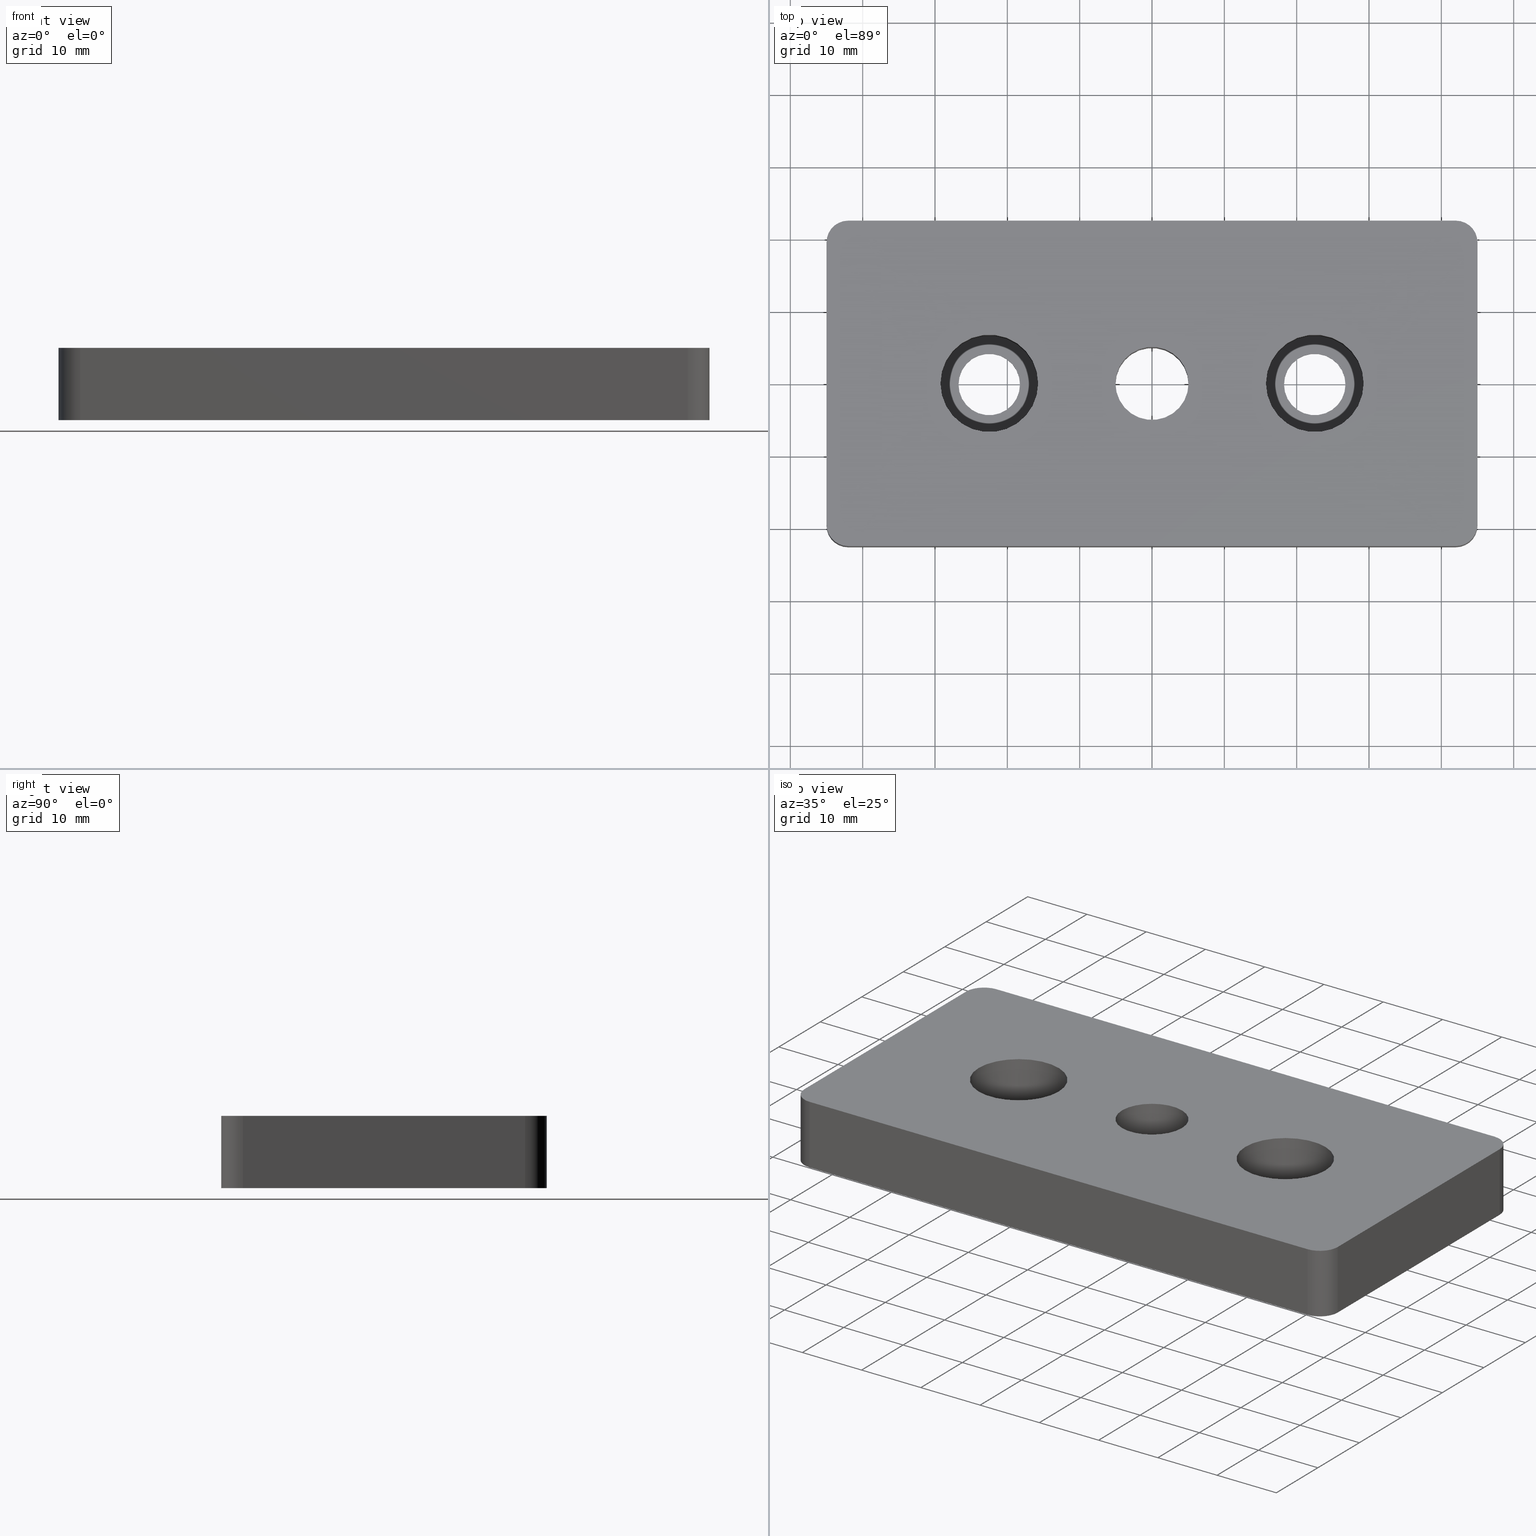
[diagram: canonical four-view strip — front | top / right | iso, engineering-drawing reading convention]
A machine part, canonical four-view strip (front | top / right | iso — engineering-drawing reading convention). The complete STEP part file that produces these views, byte-faithful:
ISO-10303-21;
HEADER;
/* Generated by software containing ST-Developer
 * from STEP Tools, Inc. (www.steptools.com) 
 */

FILE_DESCRIPTION(
/* description */ ('PIASTRA FISS. PIEDI M12 45X90'),
/* implementation_level */ '2;1');

FILE_NAME(
/* name */ 
'Q:\\Catalogo\\2_Accessori Dierre\\Per Download Web e catalogo cartace
o\\CATALOGO PIEDI E SOSTEGNI\\PAGINA 45\\DPSXX0001725.stp',
/* time_stamp */ '2018-11-09T11:29:43+01:00',
/* author */ ('fzagni'),
/* organization */ (''),
/* preprocessor_version */ 'ST-DEVELOPER v16.1',
/* originating_system */ 'Autodesk Inventor 2016',
/* authorisation */ '');

FILE_SCHEMA (('AUTOMOTIVE_DESIGN { 1 0 10303 214 3 1 1 }'));
ENDSEC;

DATA;
#10=MECHANICAL_DESIGN_GEOMETRIC_PRESENTATION_REPRESENTATION('',(#13),#493);
#11=SHAPE_REPRESENTATION_RELATIONSHIP('SRR','None',#502,#12);
#12=ADVANCED_BREP_SHAPE_REPRESENTATION('',(#14),#492);
#13=STYLED_ITEM('',(#511),#14);
#14=MANIFOLD_SOLID_BREP('Solido1',#287);
#15=FACE_BOUND('',#56,.T.);
#16=FACE_BOUND('',#57,.T.);
#17=FACE_BOUND('',#58,.T.);
#18=FACE_BOUND('',#65,.T.);
#19=FACE_BOUND('',#67,.T.);
#20=FACE_BOUND('',#69,.T.);
#21=FACE_BOUND('',#71,.T.);
#22=FACE_BOUND('',#73,.T.);
#23=FACE_BOUND('',#75,.T.);
#24=FACE_BOUND('',#77,.T.);
#25=FACE_BOUND('',#80,.T.);
#26=FACE_BOUND('',#81,.T.);
#27=FACE_BOUND('',#82,.T.);
#28=PLANE('',#292);
#29=PLANE('',#293);
#30=PLANE('',#302);
#31=PLANE('',#305);
#32=PLANE('',#308);
#33=PLANE('',#314);
#34=PLANE('',#322);
#35=PLANE('',#323);
#36=FACE_OUTER_BOUND('',#53,.T.);
#37=FACE_OUTER_BOUND('',#54,.T.);
#38=FACE_OUTER_BOUND('',#55,.T.);
#39=FACE_OUTER_BOUND('',#59,.T.);
#40=FACE_OUTER_BOUND('',#60,.T.);
#41=FACE_OUTER_BOUND('',#61,.T.);
#42=FACE_OUTER_BOUND('',#62,.T.);
#43=FACE_OUTER_BOUND('',#63,.T.);
#44=FACE_OUTER_BOUND('',#64,.T.);
#45=FACE_OUTER_BOUND('',#66,.T.);
#46=FACE_OUTER_BOUND('',#68,.T.);
#47=FACE_OUTER_BOUND('',#70,.T.);
#48=FACE_OUTER_BOUND('',#72,.T.);
#49=FACE_OUTER_BOUND('',#74,.T.);
#50=FACE_OUTER_BOUND('',#76,.T.);
#51=FACE_OUTER_BOUND('',#78,.T.);
#52=FACE_OUTER_BOUND('',#79,.T.);
#53=EDGE_LOOP('',(#193,#194,#195,#196));
#54=EDGE_LOOP('',(#197,#198,#199,#200));
#55=EDGE_LOOP('',(#201,#202,#203,#204,#205,#206,#207,#208));
#56=EDGE_LOOP('',(#209));
#57=EDGE_LOOP('',(#210));
#58=EDGE_LOOP('',(#211));
#59=EDGE_LOOP('',(#212,#213,#214,#215));
#60=EDGE_LOOP('',(#216,#217,#218,#219));
#61=EDGE_LOOP('',(#220,#221,#222,#223));
#62=EDGE_LOOP('',(#224,#225,#226,#227));
#63=EDGE_LOOP('',(#228,#229,#230,#231));
#64=EDGE_LOOP('',(#232));
#65=EDGE_LOOP('',(#233));
#66=EDGE_LOOP('',(#234));
#67=EDGE_LOOP('',(#235));
#68=EDGE_LOOP('',(#236));
#69=EDGE_LOOP('',(#237));
#70=EDGE_LOOP('',(#238));
#71=EDGE_LOOP('',(#239));
#72=EDGE_LOOP('',(#240));
#73=EDGE_LOOP('',(#241));
#74=EDGE_LOOP('',(#242));
#75=EDGE_LOOP('',(#243));
#76=EDGE_LOOP('',(#244));
#77=EDGE_LOOP('',(#245));
#78=EDGE_LOOP('',(#246,#247,#248,#249));
#79=EDGE_LOOP('',(#250,#251,#252,#253,#254,#255,#256,#257));
#80=EDGE_LOOP('',(#258));
#81=EDGE_LOOP('',(#259));
#82=EDGE_LOOP('',(#260));
#83=LINE('',#418,#99);
#84=LINE('',#421,#100);
#85=LINE('',#424,#101);
#86=LINE('',#426,#102);
#87=LINE('',#427,#103);
#88=LINE('',#430,#104);
#89=LINE('',#434,#105);
#90=LINE('',#438,#106);
#91=LINE('',#449,#107);
#92=LINE('',#452,#108);
#93=LINE('',#453,#109);
#94=LINE('',#458,#110);
#95=LINE('',#459,#111);
#96=LINE('',#461,#112);
#97=LINE('',#465,#113);
#98=LINE('',#488,#114);
#99=VECTOR('',#330,10.);
#100=VECTOR('',#333,10.);
#101=VECTOR('',#336,39.);
#102=VECTOR('',#337,10.);
#103=VECTOR('',#338,39.);
#104=VECTOR('',#341,84.);
#105=VECTOR('',#344,39.);
#106=VECTOR('',#347,84.);
#107=VECTOR('',#360,10.);
#108=VECTOR('',#363,10.);
#109=VECTOR('',#364,84.);
#110=VECTOR('',#369,10.);
#111=VECTOR('',#370,10.);
#112=VECTOR('',#373,84.);
#113=VECTOR('',#378,10.);
#114=VECTOR('',#409,39.);
#115=CIRCLE('',#290,3.);
#116=CIRCLE('',#291,3.);
#117=CIRCLE('',#294,3.);
#118=CIRCLE('',#295,3.);
#119=CIRCLE('',#296,3.);
#120=CIRCLE('',#297,4.25);
#121=CIRCLE('',#298,4.25);
#122=CIRCLE('',#299,5.053);
#123=CIRCLE('',#301,3.);
#124=CIRCLE('',#304,3.);
#125=CIRCLE('',#307,3.);
#126=CIRCLE('',#309,6.75);
#127=CIRCLE('',#310,4.25);
#128=CIRCLE('',#312,6.75);
#129=CIRCLE('',#315,6.75);
#130=CIRCLE('',#316,4.25);
#131=CIRCLE('',#318,6.75);
#132=CIRCLE('',#321,5.053);
#133=VERTEX_POINT('',#414);
#134=VERTEX_POINT('',#415);
#135=VERTEX_POINT('',#417);
#136=VERTEX_POINT('',#419);
#137=VERTEX_POINT('',#423);
#138=VERTEX_POINT('',#425);
#139=VERTEX_POINT('',#429);
#140=VERTEX_POINT('',#431);
#141=VERTEX_POINT('',#433);
#142=VERTEX_POINT('',#435);
#143=VERTEX_POINT('',#437);
#144=VERTEX_POINT('',#440);
#145=VERTEX_POINT('',#442);
#146=VERTEX_POINT('',#444);
#147=VERTEX_POINT('',#447);
#148=VERTEX_POINT('',#451);
#149=VERTEX_POINT('',#455);
#150=VERTEX_POINT('',#456);
#151=VERTEX_POINT('',#463);
#152=VERTEX_POINT('',#467);
#153=VERTEX_POINT('',#469);
#154=VERTEX_POINT('',#472);
#155=VERTEX_POINT('',#476);
#156=VERTEX_POINT('',#478);
#157=VERTEX_POINT('',#481);
#158=VERTEX_POINT('',#485);
#159=EDGE_CURVE('',#133,#134,#115,.T.);
#160=EDGE_CURVE('',#134,#135,#83,.T.);
#161=EDGE_CURVE('',#135,#136,#116,.T.);
#162=EDGE_CURVE('',#136,#133,#84,.T.);
#163=EDGE_CURVE('',#137,#136,#85,.T.);
#164=EDGE_CURVE('',#138,#137,#86,.T.);
#165=EDGE_CURVE('',#133,#138,#87,.T.);
#166=EDGE_CURVE('',#135,#139,#88,.T.);
#167=EDGE_CURVE('',#140,#139,#117,.T.);
#168=EDGE_CURVE('',#140,#141,#89,.T.);
#169=EDGE_CURVE('',#142,#141,#118,.T.);
#170=EDGE_CURVE('',#142,#143,#90,.T.);
#171=EDGE_CURVE('',#137,#143,#119,.T.);
#172=EDGE_CURVE('',#144,#144,#120,.T.);
#173=EDGE_CURVE('',#145,#145,#121,.T.);
#174=EDGE_CURVE('',#146,#146,#122,.T.);
#175=EDGE_CURVE('',#147,#138,#123,.T.);
#176=EDGE_CURVE('',#143,#147,#91,.T.);
#177=EDGE_CURVE('',#148,#142,#92,.T.);
#178=EDGE_CURVE('',#147,#148,#93,.T.);
#179=EDGE_CURVE('',#149,#150,#124,.T.);
#180=EDGE_CURVE('',#150,#140,#94,.T.);
#181=EDGE_CURVE('',#139,#149,#95,.T.);
#182=EDGE_CURVE('',#149,#134,#96,.T.);
#183=EDGE_CURVE('',#151,#148,#125,.T.);
#184=EDGE_CURVE('',#141,#151,#97,.T.);
#185=EDGE_CURVE('',#152,#152,#126,.T.);
#186=EDGE_CURVE('',#153,#153,#127,.T.);
#187=EDGE_CURVE('',#154,#154,#128,.T.);
#188=EDGE_CURVE('',#155,#155,#129,.T.);
#189=EDGE_CURVE('',#156,#156,#130,.T.);
#190=EDGE_CURVE('',#157,#157,#131,.T.);
#191=EDGE_CURVE('',#158,#158,#132,.T.);
#192=EDGE_CURVE('',#151,#150,#98,.T.);
#193=ORIENTED_EDGE('',*,*,#159,.T.);
#194=ORIENTED_EDGE('',*,*,#160,.T.);
#195=ORIENTED_EDGE('',*,*,#161,.T.);
#196=ORIENTED_EDGE('',*,*,#162,.T.);
#197=ORIENTED_EDGE('',*,*,#162,.F.);
#198=ORIENTED_EDGE('',*,*,#163,.F.);
#199=ORIENTED_EDGE('',*,*,#164,.F.);
#200=ORIENTED_EDGE('',*,*,#165,.F.);
#201=ORIENTED_EDGE('',*,*,#161,.F.);
#202=ORIENTED_EDGE('',*,*,#166,.T.);
#203=ORIENTED_EDGE('',*,*,#167,.F.);
#204=ORIENTED_EDGE('',*,*,#168,.T.);
#205=ORIENTED_EDGE('',*,*,#169,.F.);
#206=ORIENTED_EDGE('',*,*,#170,.T.);
#207=ORIENTED_EDGE('',*,*,#171,.F.);
#208=ORIENTED_EDGE('',*,*,#163,.T.);
#209=ORIENTED_EDGE('',*,*,#172,.T.);
#210=ORIENTED_EDGE('',*,*,#173,.T.);
#211=ORIENTED_EDGE('',*,*,#174,.T.);
#212=ORIENTED_EDGE('',*,*,#175,.T.);
#213=ORIENTED_EDGE('',*,*,#164,.T.);
#214=ORIENTED_EDGE('',*,*,#171,.T.);
#215=ORIENTED_EDGE('',*,*,#176,.T.);
#216=ORIENTED_EDGE('',*,*,#176,.F.);
#217=ORIENTED_EDGE('',*,*,#170,.F.);
#218=ORIENTED_EDGE('',*,*,#177,.F.);
#219=ORIENTED_EDGE('',*,*,#178,.F.);
#220=ORIENTED_EDGE('',*,*,#179,.T.);
#221=ORIENTED_EDGE('',*,*,#180,.T.);
#222=ORIENTED_EDGE('',*,*,#167,.T.);
#223=ORIENTED_EDGE('',*,*,#181,.T.);
#224=ORIENTED_EDGE('',*,*,#160,.F.);
#225=ORIENTED_EDGE('',*,*,#182,.F.);
#226=ORIENTED_EDGE('',*,*,#181,.F.);
#227=ORIENTED_EDGE('',*,*,#166,.F.);
#228=ORIENTED_EDGE('',*,*,#183,.T.);
#229=ORIENTED_EDGE('',*,*,#177,.T.);
#230=ORIENTED_EDGE('',*,*,#169,.T.);
#231=ORIENTED_EDGE('',*,*,#184,.T.);
#232=ORIENTED_EDGE('',*,*,#185,.T.);
#233=ORIENTED_EDGE('',*,*,#186,.F.);
#234=ORIENTED_EDGE('',*,*,#187,.F.);
#235=ORIENTED_EDGE('',*,*,#185,.F.);
#236=ORIENTED_EDGE('',*,*,#186,.T.);
#237=ORIENTED_EDGE('',*,*,#172,.F.);
#238=ORIENTED_EDGE('',*,*,#188,.T.);
#239=ORIENTED_EDGE('',*,*,#189,.F.);
#240=ORIENTED_EDGE('',*,*,#190,.F.);
#241=ORIENTED_EDGE('',*,*,#188,.F.);
#242=ORIENTED_EDGE('',*,*,#189,.T.);
#243=ORIENTED_EDGE('',*,*,#173,.F.);
#244=ORIENTED_EDGE('',*,*,#174,.F.);
#245=ORIENTED_EDGE('',*,*,#191,.F.);
#246=ORIENTED_EDGE('',*,*,#180,.F.);
#247=ORIENTED_EDGE('',*,*,#192,.F.);
#248=ORIENTED_EDGE('',*,*,#184,.F.);
#249=ORIENTED_EDGE('',*,*,#168,.F.);
#250=ORIENTED_EDGE('',*,*,#159,.F.);
#251=ORIENTED_EDGE('',*,*,#165,.T.);
#252=ORIENTED_EDGE('',*,*,#175,.F.);
#253=ORIENTED_EDGE('',*,*,#178,.T.);
#254=ORIENTED_EDGE('',*,*,#183,.F.);
#255=ORIENTED_EDGE('',*,*,#192,.T.);
#256=ORIENTED_EDGE('',*,*,#179,.F.);
#257=ORIENTED_EDGE('',*,*,#182,.T.);
#258=ORIENTED_EDGE('',*,*,#187,.T.);
#259=ORIENTED_EDGE('',*,*,#190,.T.);
#260=ORIENTED_EDGE('',*,*,#191,.T.);
#261=CYLINDRICAL_SURFACE('',#289,3.);
#262=CYLINDRICAL_SURFACE('',#300,3.);
#263=CYLINDRICAL_SURFACE('',#303,3.);
#264=CYLINDRICAL_SURFACE('',#306,3.);
#265=CYLINDRICAL_SURFACE('',#311,6.75);
#266=CYLINDRICAL_SURFACE('',#313,4.25);
#267=CYLINDRICAL_SURFACE('',#317,6.75);
#268=CYLINDRICAL_SURFACE('',#319,4.25);
#269=CYLINDRICAL_SURFACE('',#320,5.053);
#270=ADVANCED_FACE('',(#36),#261,.T.);
#271=ADVANCED_FACE('',(#37),#28,.T.);
#272=ADVANCED_FACE('',(#38,#15,#16,#17),#29,.F.);
#273=ADVANCED_FACE('',(#39),#262,.T.);
#274=ADVANCED_FACE('',(#40),#30,.T.);
#275=ADVANCED_FACE('',(#41),#263,.T.);
#276=ADVANCED_FACE('',(#42),#31,.T.);
#277=ADVANCED_FACE('',(#43),#264,.T.);
#278=ADVANCED_FACE('',(#44,#18),#32,.T.);
#279=ADVANCED_FACE('',(#45,#19),#265,.F.);
#280=ADVANCED_FACE('',(#46,#20),#266,.F.);
#281=ADVANCED_FACE('',(#47,#21),#33,.T.);
#282=ADVANCED_FACE('',(#48,#22),#267,.F.);
#283=ADVANCED_FACE('',(#49,#23),#268,.F.);
#284=ADVANCED_FACE('',(#50,#24),#269,.F.);
#285=ADVANCED_FACE('',(#51),#34,.T.);
#286=ADVANCED_FACE('',(#52,#25,#26,#27),#35,.T.);
#287=CLOSED_SHELL('',(#270,#271,#272,#273,#274,#275,#276,#277,#278,#279,
#280,#281,#282,#283,#284,#285,#286));
#288=AXIS2_PLACEMENT_3D('placement',#412,#324,#325);
#289=AXIS2_PLACEMENT_3D('',#413,#326,#327);
#290=AXIS2_PLACEMENT_3D('',#416,#328,#329);
#291=AXIS2_PLACEMENT_3D('',#420,#331,#332);
#292=AXIS2_PLACEMENT_3D('',#422,#334,#335);
#293=AXIS2_PLACEMENT_3D('',#428,#339,#340);
#294=AXIS2_PLACEMENT_3D('',#432,#342,#343);
#295=AXIS2_PLACEMENT_3D('',#436,#345,#346);
#296=AXIS2_PLACEMENT_3D('',#439,#348,#349);
#297=AXIS2_PLACEMENT_3D('',#441,#350,#351);
#298=AXIS2_PLACEMENT_3D('',#443,#352,#353);
#299=AXIS2_PLACEMENT_3D('',#445,#354,#355);
#300=AXIS2_PLACEMENT_3D('',#446,#356,#357);
#301=AXIS2_PLACEMENT_3D('',#448,#358,#359);
#302=AXIS2_PLACEMENT_3D('',#450,#361,#362);
#303=AXIS2_PLACEMENT_3D('',#454,#365,#366);
#304=AXIS2_PLACEMENT_3D('',#457,#367,#368);
#305=AXIS2_PLACEMENT_3D('',#460,#371,#372);
#306=AXIS2_PLACEMENT_3D('',#462,#374,#375);
#307=AXIS2_PLACEMENT_3D('',#464,#376,#377);
#308=AXIS2_PLACEMENT_3D('',#466,#379,#380);
#309=AXIS2_PLACEMENT_3D('',#468,#381,#382);
#310=AXIS2_PLACEMENT_3D('',#470,#383,#384);
#311=AXIS2_PLACEMENT_3D('',#471,#385,#386);
#312=AXIS2_PLACEMENT_3D('',#473,#387,#388);
#313=AXIS2_PLACEMENT_3D('',#474,#389,#390);
#314=AXIS2_PLACEMENT_3D('',#475,#391,#392);
#315=AXIS2_PLACEMENT_3D('',#477,#393,#394);
#316=AXIS2_PLACEMENT_3D('',#479,#395,#396);
#317=AXIS2_PLACEMENT_3D('',#480,#397,#398);
#318=AXIS2_PLACEMENT_3D('',#482,#399,#400);
#319=AXIS2_PLACEMENT_3D('',#483,#401,#402);
#320=AXIS2_PLACEMENT_3D('',#484,#403,#404);
#321=AXIS2_PLACEMENT_3D('',#486,#405,#406);
#322=AXIS2_PLACEMENT_3D('',#487,#407,#408);
#323=AXIS2_PLACEMENT_3D('',#489,#410,#411);
#324=DIRECTION('axis',(0.,0.,1.));
#325=DIRECTION('refdir',(1.,0.,0.));
#326=DIRECTION('center_axis',(0.,0.,1.));
#327=DIRECTION('ref_axis',(0.707106781186549,-0.707106781186546,0.));
#328=DIRECTION('center_axis',(0.,0.,-1.));
#329=DIRECTION('ref_axis',(0.707106781186549,-0.707106781186546,0.));
#330=DIRECTION('',(0.,0.,-1.));
#331=DIRECTION('center_axis',(0.,0.,1.));
#332=DIRECTION('ref_axis',(0.707106781186549,-0.707106781186546,0.));
#333=DIRECTION('',(0.,0.,1.));
#334=DIRECTION('center_axis',(1.,0.,0.));
#335=DIRECTION('ref_axis',(0.,1.,0.));
#336=DIRECTION('',(0.,-1.,0.));
#337=DIRECTION('',(0.,0.,-1.));
#338=DIRECTION('',(0.,1.,0.));
#339=DIRECTION('center_axis',(0.,0.,1.));
#340=DIRECTION('ref_axis',(1.,0.,0.));
#341=DIRECTION('',(-1.,0.,0.));
#342=DIRECTION('center_axis',(0.,0.,1.));
#343=DIRECTION('ref_axis',(-0.707106781186549,-0.707106781186546,0.));
#344=DIRECTION('',(0.,1.,0.));
#345=DIRECTION('center_axis',(0.,0.,1.));
#346=DIRECTION('ref_axis',(-0.707106781186549,0.707106781186546,0.));
#347=DIRECTION('',(1.,0.,0.));
#348=DIRECTION('center_axis',(0.,0.,1.));
#349=DIRECTION('ref_axis',(0.707106781186549,0.707106781186546,0.));
#350=DIRECTION('center_axis',(0.,0.,1.));
#351=DIRECTION('ref_axis',(1.,0.,0.));
#352=DIRECTION('center_axis',(0.,0.,1.));
#353=DIRECTION('ref_axis',(1.,0.,0.));
#354=DIRECTION('center_axis',(0.,0.,1.));
#355=DIRECTION('ref_axis',(1.,0.,0.));
#356=DIRECTION('center_axis',(0.,0.,1.));
#357=DIRECTION('ref_axis',(0.707106781186549,0.707106781186546,0.));
#358=DIRECTION('center_axis',(0.,0.,-1.));
#359=DIRECTION('ref_axis',(0.707106781186549,0.707106781186546,0.));
#360=DIRECTION('',(0.,0.,1.));
#361=DIRECTION('center_axis',(0.,1.,0.));
#362=DIRECTION('ref_axis',(-1.,0.,0.));
#363=DIRECTION('',(0.,0.,-1.));
#364=DIRECTION('',(-1.,0.,0.));
#365=DIRECTION('center_axis',(0.,0.,1.));
#366=DIRECTION('ref_axis',(-0.707106781186549,-0.707106781186546,0.));
#367=DIRECTION('center_axis',(0.,0.,-1.));
#368=DIRECTION('ref_axis',(-0.707106781186549,-0.707106781186546,0.));
#369=DIRECTION('',(0.,0.,-1.));
#370=DIRECTION('',(0.,0.,1.));
#371=DIRECTION('center_axis',(0.,-1.,0.));
#372=DIRECTION('ref_axis',(1.,0.,0.));
#373=DIRECTION('',(1.,0.,0.));
#374=DIRECTION('center_axis',(0.,0.,1.));
#375=DIRECTION('ref_axis',(-0.707106781186549,0.707106781186546,0.));
#376=DIRECTION('center_axis',(0.,0.,-1.));
#377=DIRECTION('ref_axis',(-0.707106781186549,0.707106781186546,0.));
#378=DIRECTION('',(0.,0.,1.));
#379=DIRECTION('center_axis',(0.,0.,1.));
#380=DIRECTION('ref_axis',(1.,0.,0.));
#381=DIRECTION('center_axis',(0.,0.,1.));
#382=DIRECTION('ref_axis',(1.,0.,0.));
#383=DIRECTION('center_axis',(0.,0.,1.));
#384=DIRECTION('ref_axis',(1.,0.,0.));
#385=DIRECTION('center_axis',(0.,0.,1.));
#386=DIRECTION('ref_axis',(1.,0.,0.));
#387=DIRECTION('center_axis',(0.,0.,-1.));
#388=DIRECTION('ref_axis',(1.,0.,0.));
#389=DIRECTION('center_axis',(0.,0.,1.));
#390=DIRECTION('ref_axis',(1.,0.,0.));
#391=DIRECTION('center_axis',(0.,0.,1.));
#392=DIRECTION('ref_axis',(1.,0.,0.));
#393=DIRECTION('center_axis',(0.,0.,1.));
#394=DIRECTION('ref_axis',(1.,0.,0.));
#395=DIRECTION('center_axis',(0.,0.,1.));
#396=DIRECTION('ref_axis',(1.,0.,0.));
#397=DIRECTION('center_axis',(0.,0.,1.));
#398=DIRECTION('ref_axis',(1.,0.,0.));
#399=DIRECTION('center_axis',(0.,0.,-1.));
#400=DIRECTION('ref_axis',(1.,0.,0.));
#401=DIRECTION('center_axis',(0.,0.,1.));
#402=DIRECTION('ref_axis',(1.,0.,0.));
#403=DIRECTION('center_axis',(0.,0.,1.));
#404=DIRECTION('ref_axis',(1.,0.,0.));
#405=DIRECTION('center_axis',(0.,0.,-1.));
#406=DIRECTION('ref_axis',(1.,0.,0.));
#407=DIRECTION('center_axis',(-1.,0.,0.));
#408=DIRECTION('ref_axis',(0.,-1.,0.));
#409=DIRECTION('',(0.,-1.,0.));
#410=DIRECTION('center_axis',(0.,0.,1.));
#411=DIRECTION('ref_axis',(1.,0.,0.));
#412=CARTESIAN_POINT('',(0.,0.,0.));
#413=CARTESIAN_POINT('Origin',(42.,-19.5,0.));
#414=CARTESIAN_POINT('',(45.,-19.5,10.));
#415=CARTESIAN_POINT('',(42.,-22.5,10.));
#416=CARTESIAN_POINT('Origin',(42.,-19.5,10.));
#417=CARTESIAN_POINT('',(42.,-22.5,0.));
#418=CARTESIAN_POINT('',(42.,-22.5,0.));
#419=CARTESIAN_POINT('',(45.,-19.5,0.));
#420=CARTESIAN_POINT('Origin',(42.,-19.5,0.));
#421=CARTESIAN_POINT('',(45.,-19.5,0.));
#422=CARTESIAN_POINT('Origin',(45.,-22.5,0.));
#423=CARTESIAN_POINT('',(45.,19.5,0.));
#424=CARTESIAN_POINT('',(45.,22.5,0.));
#425=CARTESIAN_POINT('',(45.,19.5,10.));
#426=CARTESIAN_POINT('',(45.,19.5,0.));
#427=CARTESIAN_POINT('',(45.,22.5,10.));
#428=CARTESIAN_POINT('Origin',(0.,0.,0.));
#429=CARTESIAN_POINT('',(-42.,-22.5,0.));
#430=CARTESIAN_POINT('',(45.,-22.5,0.));
#431=CARTESIAN_POINT('',(-45.,-19.5,0.));
#432=CARTESIAN_POINT('Origin',(-42.,-19.5,0.));
#433=CARTESIAN_POINT('',(-45.,19.5,0.));
#434=CARTESIAN_POINT('',(-45.,-22.5,0.));
#435=CARTESIAN_POINT('',(-42.,22.5,0.));
#436=CARTESIAN_POINT('Origin',(-42.,19.5,0.));
#437=CARTESIAN_POINT('',(42.,22.5,0.));
#438=CARTESIAN_POINT('',(-45.,22.5,0.));
#439=CARTESIAN_POINT('Origin',(42.,19.5,0.));
#440=CARTESIAN_POINT('',(-18.25,0.,0.));
#441=CARTESIAN_POINT('Origin',(-22.5,0.,0.));
#442=CARTESIAN_POINT('',(26.75,0.,0.));
#443=CARTESIAN_POINT('Origin',(22.5,0.,0.));
#444=CARTESIAN_POINT('',(-5.053,-6.18814027609158E-16,0.));
#445=CARTESIAN_POINT('Origin',(0.,0.,0.));
#446=CARTESIAN_POINT('Origin',(42.,19.5,0.));
#447=CARTESIAN_POINT('',(42.,22.5,10.));
#448=CARTESIAN_POINT('Origin',(42.,19.5,10.));
#449=CARTESIAN_POINT('',(42.,22.5,0.));
#450=CARTESIAN_POINT('Origin',(45.,22.5,0.));
#451=CARTESIAN_POINT('',(-42.,22.5,10.));
#452=CARTESIAN_POINT('',(-42.,22.5,0.));
#453=CARTESIAN_POINT('',(-45.,22.5,10.));
#454=CARTESIAN_POINT('Origin',(-42.,-19.5,0.));
#455=CARTESIAN_POINT('',(-42.,-22.5,10.));
#456=CARTESIAN_POINT('',(-45.,-19.5,10.));
#457=CARTESIAN_POINT('Origin',(-42.,-19.5,10.));
#458=CARTESIAN_POINT('',(-45.,-19.5,0.));
#459=CARTESIAN_POINT('',(-42.,-22.5,0.));
#460=CARTESIAN_POINT('Origin',(-45.,-22.5,0.));
#461=CARTESIAN_POINT('',(45.,-22.5,10.));
#462=CARTESIAN_POINT('Origin',(-42.,19.5,0.));
#463=CARTESIAN_POINT('',(-45.,19.5,10.));
#464=CARTESIAN_POINT('Origin',(-42.,19.5,10.));
#465=CARTESIAN_POINT('',(-45.,19.5,0.));
#466=CARTESIAN_POINT('Origin',(-22.5,0.,1.5));
#467=CARTESIAN_POINT('',(-15.75,0.,1.5));
#468=CARTESIAN_POINT('Origin',(-22.5,0.,1.5));
#469=CARTESIAN_POINT('',(-26.75,-5.20474889637625E-16,1.5));
#470=CARTESIAN_POINT('Origin',(-22.5,0.,1.5));
#471=CARTESIAN_POINT('Origin',(-22.5,0.,5.75));
#472=CARTESIAN_POINT('',(-15.75,0.,10.));
#473=CARTESIAN_POINT('Origin',(-22.5,0.,10.));
#474=CARTESIAN_POINT('Origin',(-22.5,0.,5.));
#475=CARTESIAN_POINT('Origin',(22.5,0.,1.5));
#476=CARTESIAN_POINT('',(29.25,0.,1.5));
#477=CARTESIAN_POINT('Origin',(22.5,0.,1.5));
#478=CARTESIAN_POINT('',(18.25,-5.20474889637625E-16,1.5));
#479=CARTESIAN_POINT('Origin',(22.5,0.,1.5));
#480=CARTESIAN_POINT('Origin',(22.5,0.,5.75));
#481=CARTESIAN_POINT('',(29.25,0.,10.));
#482=CARTESIAN_POINT('Origin',(22.5,0.,10.));
#483=CARTESIAN_POINT('Origin',(22.5,0.,5.));
#484=CARTESIAN_POINT('Origin',(0.,0.,-91.1187420807834));
#485=CARTESIAN_POINT('',(5.053,0.,10.));
#486=CARTESIAN_POINT('Origin',(0.,0.,10.));
#487=CARTESIAN_POINT('Origin',(-45.,22.5,0.));
#488=CARTESIAN_POINT('',(-45.,-22.5,10.));
#489=CARTESIAN_POINT('Origin',(0.,0.,10.));
#490=UNCERTAINTY_MEASURE_WITH_UNIT(LENGTH_MEASURE(0.01),#494,
'DISTANCE_ACCURACY_VALUE',
'Maximum model space distance between geometric entities at asserted c
onnectivities');
#491=UNCERTAINTY_MEASURE_WITH_UNIT(LENGTH_MEASURE(1.E-6),#494,
'DISTANCE_ACCURACY_VALUE',
'Maximum model space distance between geometric entities at asserted c
onnectivities');
#492=(
GEOMETRIC_REPRESENTATION_CONTEXT(3)
GLOBAL_UNCERTAINTY_ASSIGNED_CONTEXT((#490))
GLOBAL_UNIT_ASSIGNED_CONTEXT((#494,#497,#495))
REPRESENTATION_CONTEXT('','3D')
);
#493=(
GEOMETRIC_REPRESENTATION_CONTEXT(3)
GLOBAL_UNCERTAINTY_ASSIGNED_CONTEXT((#491))
GLOBAL_UNIT_ASSIGNED_CONTEXT((#494,#497,#495))
REPRESENTATION_CONTEXT('','3D')
);
#494=(
LENGTH_UNIT()
NAMED_UNIT(*)
SI_UNIT(.MILLI.,.METRE.)
);
#495=(
NAMED_UNIT(*)
SI_UNIT($,.STERADIAN.)
SOLID_ANGLE_UNIT()
);
#496=DIMENSIONAL_EXPONENTS(0.,0.,0.,0.,0.,0.,0.);
#497=(
CONVERSION_BASED_UNIT('degree',#499)
NAMED_UNIT(#496)
PLANE_ANGLE_UNIT()
);
#498=(
NAMED_UNIT(*)
PLANE_ANGLE_UNIT()
SI_UNIT($,.RADIAN.)
);
#499=PLANE_ANGLE_MEASURE_WITH_UNIT(PLANE_ANGLE_MEASURE(0.01745329252),#498);
#500=SHAPE_DEFINITION_REPRESENTATION(#501,#502);
#501=PRODUCT_DEFINITION_SHAPE('',$,#504);
#502=SHAPE_REPRESENTATION('',(#288),#492);
#503=PRODUCT_DEFINITION_CONTEXT('part definition',#508,'design');
#504=PRODUCT_DEFINITION('440000006754','440000006754',#505,#503);
#505=PRODUCT_DEFINITION_FORMATION('','A',#510);
#506=PRODUCT_RELATED_PRODUCT_CATEGORY('440000006754','440000006754',(#510));
#507=APPLICATION_PROTOCOL_DEFINITION('international standard',
'automotive_design',2009,#508);
#508=APPLICATION_CONTEXT(
'Core Data for Automotive Mechanical Design Process');
#509=PRODUCT_CONTEXT('part definition',#508,'mechanical');
#510=PRODUCT('440000006754','440000006754',$,(#509));
#511=PRESENTATION_STYLE_ASSIGNMENT((#512));
#512=SURFACE_STYLE_USAGE(.BOTH.,#513);
#513=SURFACE_SIDE_STYLE('',(#514));
#514=SURFACE_STYLE_FILL_AREA(#515);
#515=FILL_AREA_STYLE('',(#516));
#516=FILL_AREA_STYLE_COLOUR('',#517);
#517=COLOUR_RGB('',0.501960784313725,0.501960784313725,0.501960784313725);
ENDSEC;
END-ISO-10303-21;
